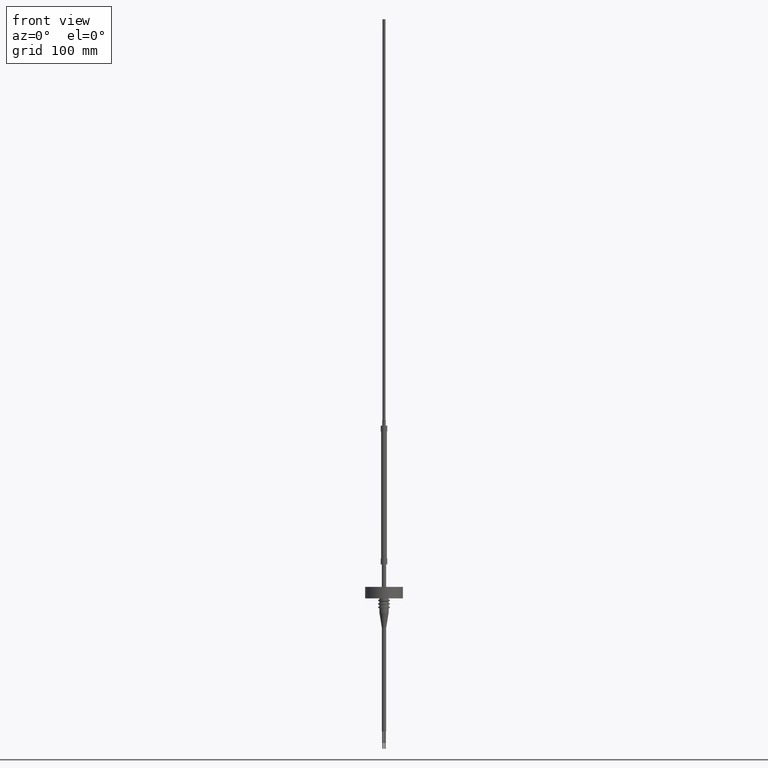
[diagram: clean part render]
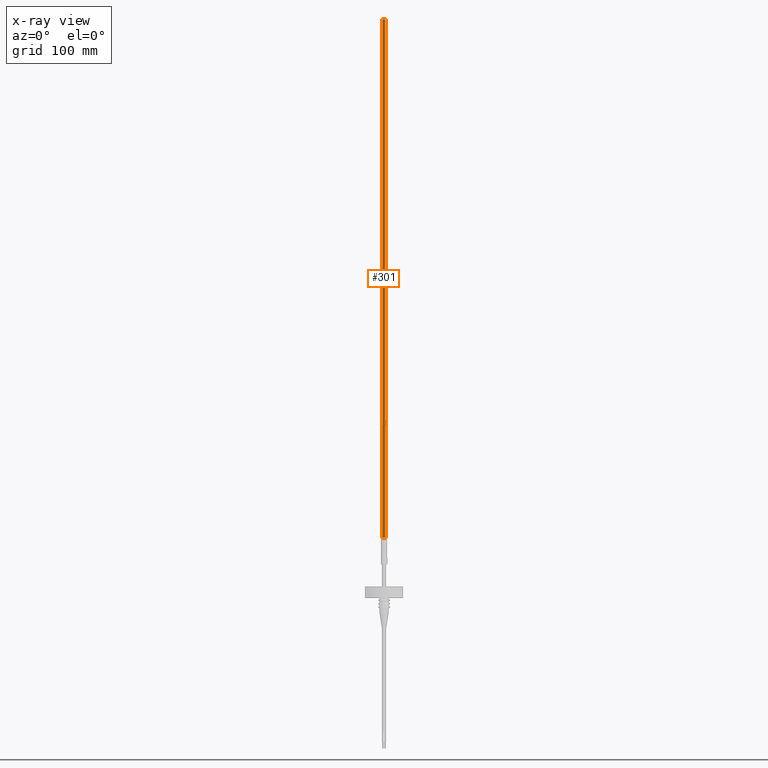
[diagram: x-ray — body ghosted, one internal face saturated and labeled with its STEP entity id]
A machine part, front view, then the same camera in x-ray: the body is ghosted and one INTERNAL B-rep face — a face not visible from any outside direction — is saturated and labeled: STEP entity #301.
In plain terms, the highlighted cylindrical surface (edge-blend (fillet) strip) has radius 1.25 mm, axis along (-0, -0, -1).
Its self-contained STEP definition (entity closure, byte-faithful):
#171 = EDGE_CURVE ( 'NONE', #583, #807, #2037, .T. ) ;
#201 = FACE_OUTER_BOUND ( 'NONE', #3333, .T. ) ;
#221 = DIRECTION ( 'NONE',  ( -0.000000000000000000, -0.000000000000000000, -1.000000000000000000 ) ) ;
#271 = CARTESIAN_POINT ( 'NONE',  ( -1.250000000000000000, 0.000000000000000000, 450.0000000000000000 ) ) ;
#286 = CARTESIAN_POINT ( 'NONE',  ( -1.250000000000000000, 0.000000000000000000, 0.000000000000000000 ) ) ;
#301 = ADVANCED_FACE ( 'NONE', ( #201 ), #2131, .T. ) ;
#504 = CARTESIAN_POINT ( 'NONE',  ( -1.250000000000000000, 0.000000000000000000, 450.0000000000000000 ) ) ;
#535 = AXIS2_PLACEMENT_3D ( 'NONE', #656, #2769, #1152 ) ;
#583 = VERTEX_POINT ( 'NONE', #286 ) ;
#656 = CARTESIAN_POINT ( 'NONE',  ( 0.000000000000000000, 0.000000000000000000, 450.0000000000000000 ) ) ;
#673 = ORIENTED_EDGE ( 'NONE', *, *, #1431, .F. ) ;
#743 = CARTESIAN_POINT ( 'NONE',  ( 1.250000000000000000, 1.530808498934191571E-16, 0.000000000000000000 ) ) ;
#807 = VERTEX_POINT ( 'NONE', #743 ) ;
#922 = ORIENTED_EDGE ( 'NONE', *, *, #2024, .F. ) ;
#1152 = DIRECTION ( 'NONE',  ( 1.000000000000000000, 0.000000000000000000, 0.000000000000000000 ) ) ;
#1229 = AXIS2_PLACEMENT_3D ( 'NONE', #1735, #2313, #2870 ) ;
#1282 = VECTOR ( 'NONE', #2805, 1000.000000000000000 ) ;
#1295 = CARTESIAN_POINT ( 'NONE',  ( 0.000000000000000000, 0.000000000000000000, 450.0000000000000000 ) ) ;
#1431 = EDGE_CURVE ( 'NONE', #2384, #2756, #3227, .T. ) ;
#1577 = LINE ( 'NONE', #504, #2288 ) ;
#1735 = CARTESIAN_POINT ( 'NONE',  ( 0.000000000000000000, 0.000000000000000000, 0.000000000000000000 ) ) ;
#1820 = ORIENTED_EDGE ( 'NONE', *, *, #2646, .T. ) ;
#1845 = DIRECTION ( 'NONE',  ( -1.000000000000000000, 0.000000000000000000, 0.000000000000000000 ) ) ;
#2024 = EDGE_CURVE ( 'NONE', #2756, #807, #2540, .T. ) ;
#2037 = CIRCLE ( 'NONE', #1229, 1.250000000000000000 ) ;
#2131 = CYLINDRICAL_SURFACE ( 'NONE', #3129, 1.250000000000000000 ) ;
#2288 = VECTOR ( 'NONE', #221, 1000.000000000000000 ) ;
#2313 = DIRECTION ( 'NONE',  ( 0.000000000000000000, 0.000000000000000000, 1.000000000000000000 ) ) ;
#2384 = VERTEX_POINT ( 'NONE', #271 ) ;
#2398 = DIRECTION ( 'NONE',  ( -0.000000000000000000, -0.000000000000000000, -1.000000000000000000 ) ) ;
#2540 = LINE ( 'NONE', #3056, #1282 ) ;
#2560 = ORIENTED_EDGE ( 'NONE', *, *, #171, .T. ) ;
#2646 = EDGE_CURVE ( 'NONE', #2384, #583, #1577, .T. ) ;
#2756 = VERTEX_POINT ( 'NONE', #3416 ) ;
#2769 = DIRECTION ( 'NONE',  ( 0.000000000000000000, 0.000000000000000000, 1.000000000000000000 ) ) ;
#2805 = DIRECTION ( 'NONE',  ( -0.000000000000000000, -0.000000000000000000, -1.000000000000000000 ) ) ;
#2870 = DIRECTION ( 'NONE',  ( 1.000000000000000000, 0.000000000000000000, 0.000000000000000000 ) ) ;
#3056 = CARTESIAN_POINT ( 'NONE',  ( 1.250000000000000000, 1.530808498934191571E-16, 450.0000000000000000 ) ) ;
#3129 = AXIS2_PLACEMENT_3D ( 'NONE', #1295, #2398, #1845 ) ;
#3227 = CIRCLE ( 'NONE', #535, 1.250000000000000000 ) ;
#3333 = EDGE_LOOP ( 'NONE', ( #922, #673, #1820, #2560 ) ) ;
#3416 = CARTESIAN_POINT ( 'NONE',  ( 1.250000000000000000, 1.530808498934191571E-16, 450.0000000000000000 ) ) ;